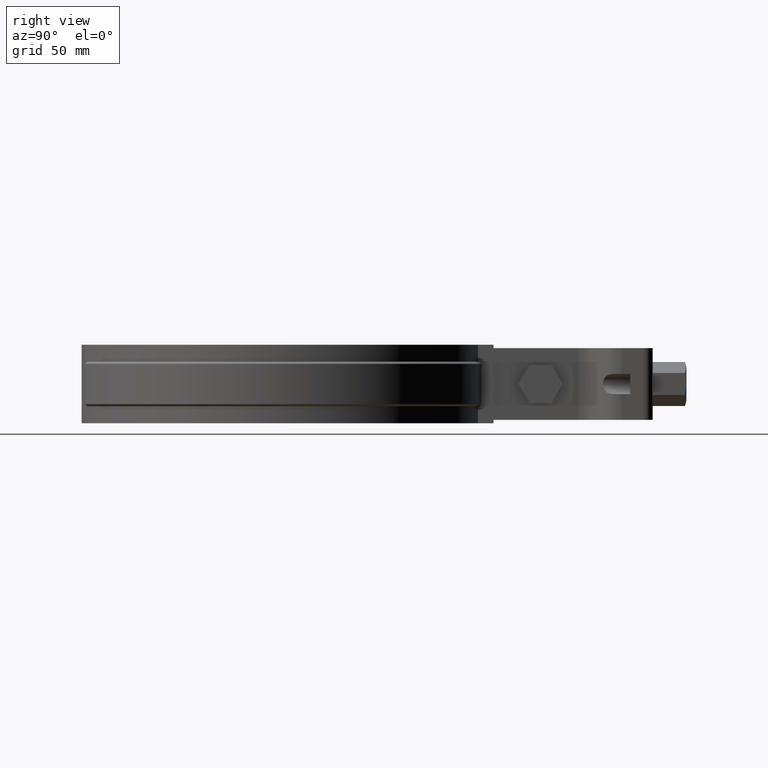
[diagram: clean part render]
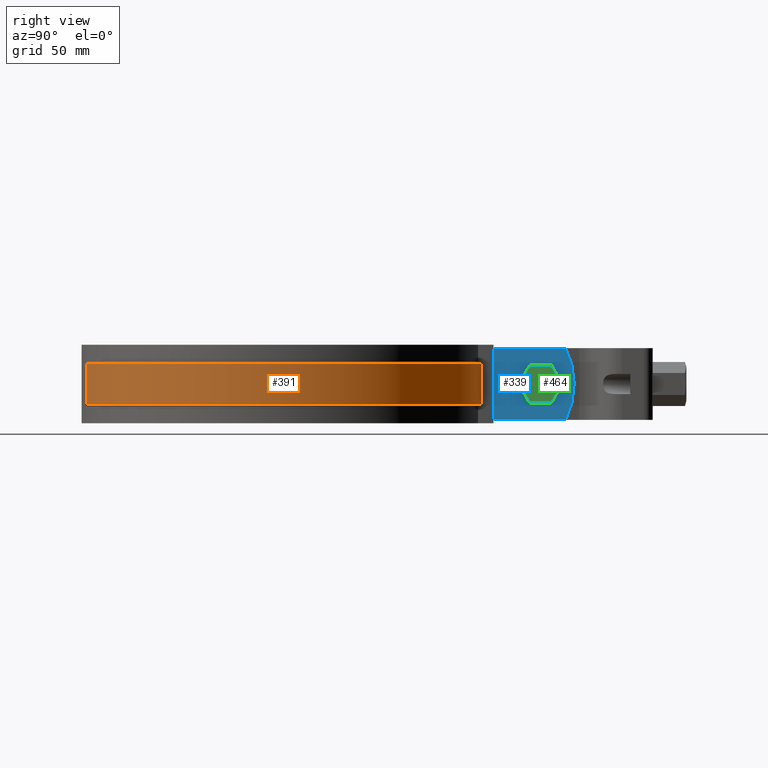
[diagram: same view with three faces highlighted in distinct colors, each labeled with its STEP entity id]
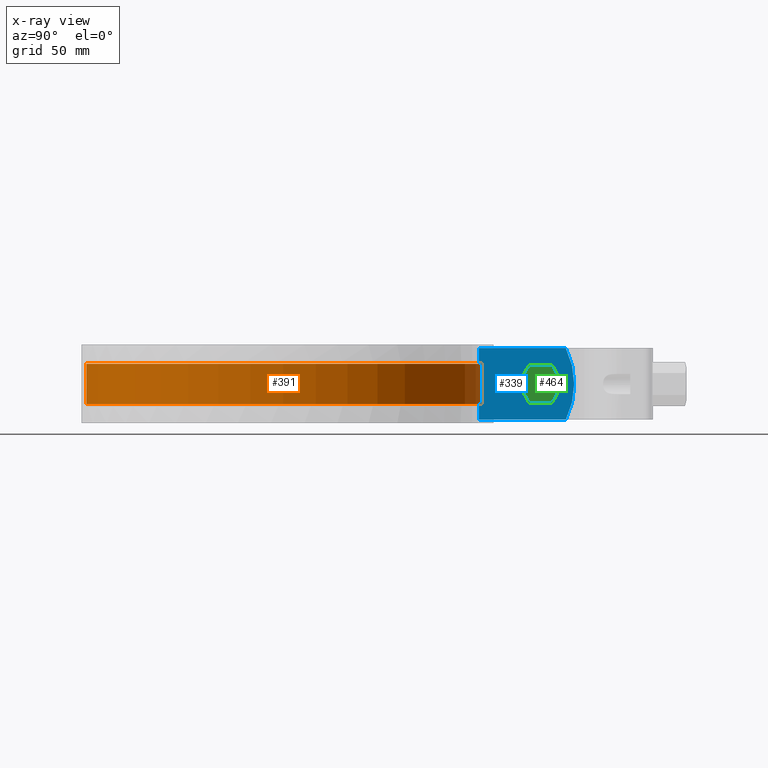
[diagram: x-ray of the same camera — body ghosted, the three highlighted faces saturated]
A machine part, right view with three faces highlighted in distinct colors.
The next image is the same camera in x-ray (body ghosted, the three faces saturated) — at least one of them is partly hidden behind the body in this view.
Their STEP definitions:

[orange] entity #391 — the highlighted cylindrical surface (partial cylindrical patch) has radius 90.1 mm, axis along (0, 0, -1).
#391 = ADVANCED_FACE( '', ( #655 ), #656, .T. );
#655 = FACE_OUTER_BOUND( '', #1790, .T. );
#656 = CYLINDRICAL_SURFACE( '', #1791, 90.1000000000000 );
#1790 = EDGE_LOOP( '', ( #4143, #4144, #4145, #4146 ) );
#1791 = AXIS2_PLACEMENT_3D( '', #4147, #4148, #4149 );
#4143 = ORIENTED_EDGE( '', *, *, #5048, .T. );
#4144 = ORIENTED_EDGE( '', *, *, #5172, .T. );
#4145 = ORIENTED_EDGE( '', *, *, #5186, .F. );
#4146 = ORIENTED_EDGE( '', *, *, #5159, .T. );
#4147 = CARTESIAN_POINT( '', ( -3.46944695195361E-015, 1.38777878078145E-014, -26.0000000000000 ) );
#4148 = DIRECTION( '', ( 0.000000000000000, 0.000000000000000, -1.00000000000000 ) );
#4149 = DIRECTION( '', ( 0.279817321684446, -0.960053262316911, 0.000000000000000 ) );
#5048 = EDGE_CURVE( '', #5579, #5577, #5580, .T. );
#5159 = EDGE_CURVE( '', #5769, #5579, #5770, .T. );
#5172 = EDGE_CURVE( '', #5577, #5784, #5790, .F. );
#5186 = EDGE_CURVE( '', #5769, #5784, #5808, .T. );
#5577 = VERTEX_POINT( '', #7398 );
#5579 = VERTEX_POINT( '', #7403 );
#5580 = LINE( '', #7404, #7405 );
#5769 = VERTEX_POINT( '', #8658 );
#5770 = CIRCLE( '', #8659, 90.1000000000000 );
#5784 = VERTEX_POINT( '', #8678 );
#5790 = CIRCLE( '', #8685, 90.1000000000000 );
#5808 = LINE( '', #8710, #8711 );
#7398 = CARTESIAN_POINT( '', ( 8.39999999999999, 89.7075805046597, -6.99999999999999 ) );
#7403 = CARTESIAN_POINT( '', ( 8.39999999999999, 89.7075805046597, -25.0000000000000 ) );
#7404 = CARTESIAN_POINT( '', ( 8.39999999999996, 89.7075805046598, -26.0000000000000 ) );
#7405 = VECTOR( '', #9593, 1000.00000000000 );
#8658 = CARTESIAN_POINT( '', ( 25.2115406837686, -86.5007989347537, -25.0000000000000 ) );
#8659 = AXIS2_PLACEMENT_3D( '', #9733, #9734, #9735 );
#8678 = CARTESIAN_POINT( '', ( 25.2115406837686, -86.5007989347537, -6.99999999999999 ) );
#8685 = AXIS2_PLACEMENT_3D( '', #9760, #9761, #9762 );
#8710 = CARTESIAN_POINT( '', ( 25.2115406837686, -86.5007989347537, -26.0000000000000 ) );
#8711 = VECTOR( '', #9788, 1000.00000000000 );
#9593 = DIRECTION( '', ( 0.000000000000000, 0.000000000000000, 1.00000000000000 ) );
#9733 = CARTESIAN_POINT( '', ( -3.46944695195361E-015, 1.38777878078145E-014, -25.0000000000000 ) );
#9734 = DIRECTION( '', ( 0.000000000000000, 0.000000000000000, 1.00000000000000 ) );
#9735 = DIRECTION( '', ( 1.00000000000000, 0.000000000000000, 0.000000000000000 ) );
#9760 = CARTESIAN_POINT( '', ( -3.46944695195361E-015, 1.38777878078145E-014, -7.00000000000000 ) );
#9761 = DIRECTION( '', ( 0.000000000000000, 0.000000000000000, 1.00000000000000 ) );
#9762 = DIRECTION( '', ( 1.00000000000000, 0.000000000000000, 0.000000000000000 ) );
#9788 = DIRECTION( '', ( 0.000000000000000, 0.000000000000000, 1.00000000000000 ) );

[blue] entity #339 — the highlighted planar face has unit normal (1, 0, 0).
#339 = ADVANCED_FACE( '', ( #546, #547 ), #548, .T. );
#546 = FACE_BOUND( '', #1308, .T. );
#547 = FACE_OUTER_BOUND( '', #1309, .T. );
#548 = PLANE( '', #1310 );
#1308 = EDGE_LOOP( '', ( #2966 ) );
#1309 = EDGE_LOOP( '', ( #2967, #2968, #2969, #2970 ) );
#1310 = AXIS2_PLACEMENT_3D( '', #2971, #2972, #2973 );
#2966 = ORIENTED_EDGE( '', *, *, #5023, .F. );
#2967 = ORIENTED_EDGE( '', *, *, #4975, .T. );
#2968 = ORIENTED_EDGE( '', *, *, #5003, .T. );
#2969 = ORIENTED_EDGE( '', *, *, #5034, .F. );
#2970 = ORIENTED_EDGE( '', *, *, #5026, .T. );
#2971 = CARTESIAN_POINT( '', ( 6.50000000000000, 131.072986998692, 4.33680868994202E-016 ) );
#2972 = DIRECTION( '', ( 1.00000000000000, 6.26427921880514E-017, 0.000000000000000 ) );
#2973 = DIRECTION( '', ( 6.26427921880514E-017, -1.00000000000000, 0.000000000000000 ) );
#4975 = EDGE_CURVE( '', #5457, #5455, #5458, .T. );
#5003 = EDGE_CURVE( '', #5455, #5504, #5506, .F. );
#5023 = EDGE_CURVE( '', #5536, #5536, #5537, .T. );
#5026 = EDGE_CURVE( '', #5542, #5457, #5543, .T. );
#5034 = EDGE_CURVE( '', #5542, #5504, #5553, .T. );
#5455 = VERTEX_POINT( '', #6491 );
#5457 = VERTEX_POINT( '', #6493 );
#5458 = LINE( '', #6494, #6495 );
#5504 = VERTEX_POINT( '', #7051 );
#5506 = LINE( '', #7053, #7054 );
#5536 = VERTEX_POINT( '', #7341 );
#5537 = CIRCLE( '', #7342, 5.50000000000000 );
#5542 = VERTEX_POINT( '', #7347 );
#5543 = CIRCLE( '', #7348, 36.0000000000000 );
#5553 = LINE( '', #7362, #7363 );
#6491 = CARTESIAN_POINT( '', ( 6.50000000000001, 88.6442891561549, 4.33680868994202E-016 ) );
#6493 = CARTESIAN_POINT( '', ( 6.50000000000000, 127.322017991886, -4.33680868994202E-016 ) );
#6494 = CARTESIAN_POINT( '', ( 6.50000000000000, 131.072986998692, 4.33680868994202E-016 ) );
#6495 = VECTOR( '', #9506, 1000.00000000000 );
#7051 = CARTESIAN_POINT( '', ( 6.50000000000001, 88.6442891561549, -32.0000000000000 ) );
#7053 = CARTESIAN_POINT( '', ( 6.50000000000001, 88.6442891561549, -32.0000000000000 ) );
#7054 = VECTOR( '', #9529, 1000.00000000000 );
#7341 = CARTESIAN_POINT( '', ( 6.50000000000000, 121.572986998692, -16.0000000000000 ) );
#7342 = AXIS2_PLACEMENT_3D( '', #9553, #9554, #9555 );
#7347 = CARTESIAN_POINT( '', ( 6.50000000000000, 127.322017991886, -32.0000000000000 ) );
#7348 = AXIS2_PLACEMENT_3D( '', #9562, #9563, #9564 );
#7362 = CARTESIAN_POINT( '', ( 6.50000000000000, 131.072986998692, -32.0000000000000 ) );
#7363 = VECTOR( '', #9578, 1000.00000000000 );
#9506 = DIRECTION( '', ( 6.26427921880514E-017, -1.00000000000000, 0.000000000000000 ) );
#9529 = DIRECTION( '', ( 0.000000000000000, 0.000000000000000, 1.00000000000000 ) );
#9553 = CARTESIAN_POINT( '', ( 6.50000000000000, 116.072986998692, -16.0000000000000 ) );
#9554 = DIRECTION( '', ( 1.00000000000000, 6.26427921880514E-017, 0.000000000000000 ) );
#9555 = DIRECTION( '', ( -6.26427921880514E-017, 1.00000000000000, 0.000000000000000 ) );
#9562 = CARTESIAN_POINT( '', ( 6.50000000000001, 95.0729869986921, -16.0000000000000 ) );
#9563 = DIRECTION( '', ( 1.00000000000000, 6.26427921880514E-017, 0.000000000000000 ) );
#9564 = DIRECTION( '', ( -6.26427921880514E-017, 1.00000000000000, 0.000000000000000 ) );
#9578 = DIRECTION( '', ( 6.26427921880514E-017, -1.00000000000000, 0.000000000000000 ) );

[green] entity #464 — the highlighted planar face has unit normal (-1, -0, -0).
#464 = ADVANCED_FACE( '', ( #821 ), #822, .F. );
#821 = FACE_OUTER_BOUND( '', #1956, .T. );
#822 = PLANE( '', #1957 );
#1956 = EDGE_LOOP( '', ( #4752, #4753, #4754, #4755, #4756, #4757 ) );
#1957 = AXIS2_PLACEMENT_3D( '', #4758, #4759, #4760 );
#4752 = ORIENTED_EDGE( '', *, *, #5365, .T. );
#4753 = ORIENTED_EDGE( '', *, *, #5368, .T. );
#4754 = ORIENTED_EDGE( '', *, *, #5371, .T. );
#4755 = ORIENTED_EDGE( '', *, *, #5372, .T. );
#4756 = ORIENTED_EDGE( '', *, *, #5373, .T. );
#4757 = ORIENTED_EDGE( '', *, *, #5374, .T. );
#4758 = CARTESIAN_POINT( '', ( 13.4999999999993, 101.350555134358, -7.50000000000168 ) );
#4759 = DIRECTION( '', ( -1.00000000000000, -6.26427921880514E-017, -6.16297582203983E-033 ) );
#4760 = DIRECTION( '', ( -2.69417269959257E-030, 4.29101199017634E-014, 1.00000000000000 ) );
#5365 = EDGE_CURVE( '', #6106, #6104, #6107, .T. );
#5368 = EDGE_CURVE( '', #6104, #6109, #6111, .T. );
#5371 = EDGE_CURVE( '', #6109, #6116, #6117, .T. );
#5372 = EDGE_CURVE( '', #6116, #6118, #6119, .T. );
#5373 = EDGE_CURVE( '', #6118, #6120, #6121, .T. );
#5374 = EDGE_CURVE( '', #6120, #6106, #6122, .T. );
#6104 = VERTEX_POINT( '', #9282 );
#6106 = VERTEX_POINT( '', #9285 );
#6107 = LINE( '', #9286, #9287 );
#6109 = VERTEX_POINT( '', #9290 );
#6111 = LINE( '', #9293, #9294 );
#6116 = VERTEX_POINT( '', #9299 );
#6117 = LINE( '', #9300, #9301 );
#6118 = VERTEX_POINT( '', #9302 );
#6119 = LINE( '', #9303, #9304 );
#6120 = VERTEX_POINT( '', #9305 );
#6121 = LINE( '', #9306, #9307 );
#6122 = LINE( '', #9308, #9309 );
#9282 = CARTESIAN_POINT( '', ( 13.4999999999993, 111.165509710580, -24.4999999999992 ) );
#9285 = CARTESIAN_POINT( '', ( 13.4999999999993, 106.258032422469, -16.0000000000004 ) );
#9286 = CARTESIAN_POINT( '', ( 13.4999999999993, 106.258032422469, -16.0000000000004 ) );
#9287 = VECTOR( '', #10069, 999.999999999951 );
#9290 = CARTESIAN_POINT( '', ( 13.4999999999993, 120.980464286803, -24.4999999999987 ) );
#9293 = CARTESIAN_POINT( '', ( 13.4999999999993, 111.165509710580, -24.4999999999992 ) );
#9294 = VECTOR( '', #10072, 1000.00000000002 );
#9299 = CARTESIAN_POINT( '', ( 13.4999999999993, 125.887941574915, -15.9999999999996 ) );
#9300 = CARTESIAN_POINT( '', ( 13.4999999999993, 120.980464286803, -24.4999999999987 ) );
#9301 = VECTOR( '', #10079, 1000.00000000002 );
#9302 = CARTESIAN_POINT( '', ( 13.4999999999993, 120.980464286804, -7.50000000000084 ) );
#9303 = CARTESIAN_POINT( '', ( 13.4999999999993, 125.887941574915, -15.9999999999996 ) );
#9304 = VECTOR( '', #10080, 999.999999999951 );
#9305 = CARTESIAN_POINT( '', ( 13.4999999999993, 111.165509710581, -7.50000000000126 ) );
#9306 = CARTESIAN_POINT( '', ( 13.4999999999993, 120.980464286804, -7.50000000000083 ) );
#9307 = VECTOR( '', #10081, 1000.00000000002 );
#9308 = CARTESIAN_POINT( '', ( 13.4999999999993, 111.165509710581, -7.50000000000125 ) );
#9309 = VECTOR( '', #10082, 1000.00000000002 );
#10069 = DIRECTION( '', ( -3.13213960940257E-017, 0.500000000000000, -0.866025403784439 ) );
#10072 = DIRECTION( '', ( -6.26427921880514E-017, 1.00000000000000, 4.26325641456050E-014 ) );
#10079 = DIRECTION( '', ( -3.13213960940280E-017, 0.500000000000037, 0.866025403784417 ) );
#10080 = DIRECTION( '', ( 3.13213960940257E-017, -0.500000000000000, 0.866025403784439 ) );
#10081 = DIRECTION( '', ( 6.26427921880514E-017, -1.00000000000000, -4.27435864480675E-014 ) );
#10082 = DIRECTION( '', ( 3.13213960940280E-017, -0.500000000000037, -0.866025403784417 ) );